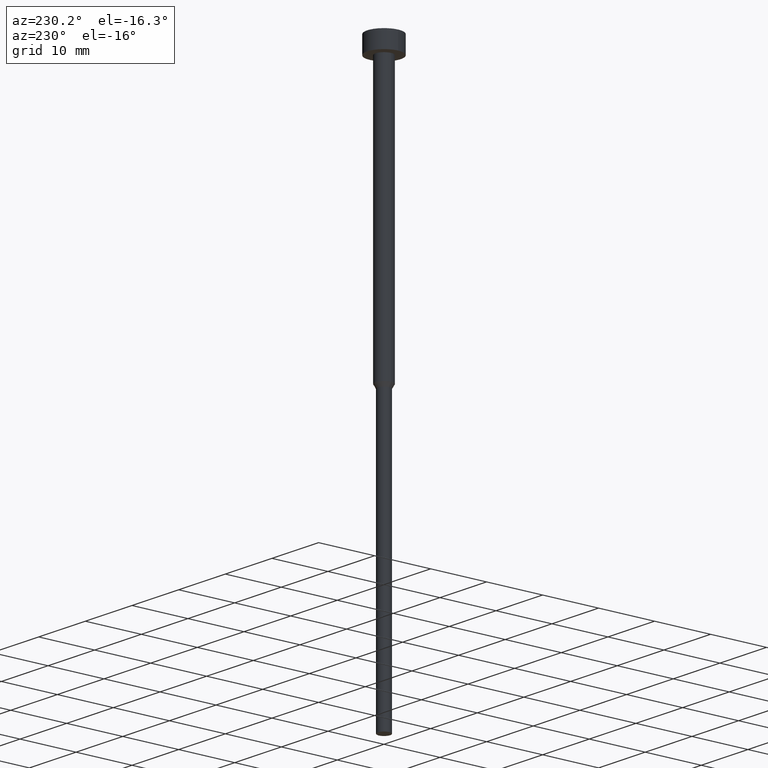
[diagram: clean part render]
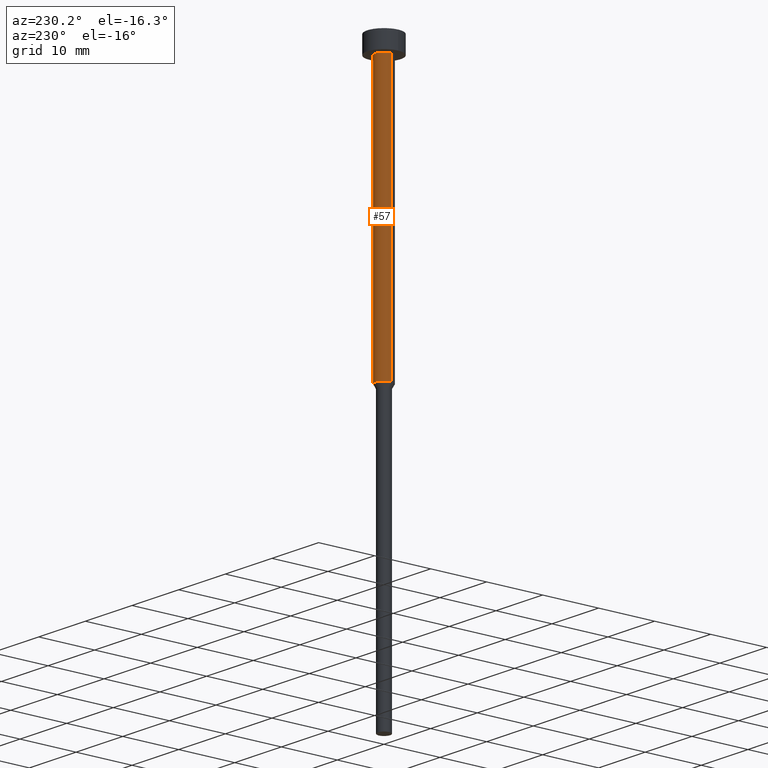
[diagram: same view with one face highlighted and labeled with its STEP entity id]
A machine part, auxiliary view. The second image highlights one B-rep face of the part: STEP entity #57.
In plain terms, the highlighted cylindrical surface (edge-blend (fillet) strip) has radius 1.5 mm, axis along (-0, -0, 1).
Its self-contained STEP definition (entity closure, byte-faithful):
#5 = CARTESIAN_POINT ( 'NONE',  ( 0.000000000000000000, 0.000000000000000000, -50.00000000000000000 ) ) ;
#9 = DIRECTION ( 'NONE',  ( -0.000000000000000000, -0.000000000000000000, 1.000000000000000000 ) ) ;
#12 = LINE ( 'NONE', #229, #194 ) ;
#19 = ORIENTED_EDGE ( 'NONE', *, *, #266, .T. ) ;
#25 = VERTEX_POINT ( 'NONE', #29 ) ;
#29 = CARTESIAN_POINT ( 'NONE',  ( 1.500000000000000000, 0.000000000000000000, -50.00000000000000000 ) ) ;
#30 = DIRECTION ( 'NONE',  ( -0.000000000000000000, -0.000000000000000000, 1.000000000000000000 ) ) ;
#35 = LINE ( 'NONE', #64, #282 ) ;
#40 = VERTEX_POINT ( 'NONE', #86 ) ;
#43 = CIRCLE ( 'NONE', #99, 1.500000000000000000 ) ;
#51 = CIRCLE ( 'NONE', #223, 1.500000000000000000 ) ;
#57 = ADVANCED_FACE ( 'NONE', ( #251 ), #112, .T. ) ;
#64 = CARTESIAN_POINT ( 'NONE',  ( 1.500000000000000000, 0.000000000000000000, 0.000000000000000000 ) ) ;
#86 = CARTESIAN_POINT ( 'NONE',  ( 1.500000000000000000, 0.000000000000000000, -3.000000000000000888 ) ) ;
#95 = DIRECTION ( 'NONE',  ( -0.000000000000000000, -0.000000000000000000, 1.000000000000000000 ) ) ;
#99 = AXIS2_PLACEMENT_3D ( 'NONE', #310, #95, #258 ) ;
#100 = ORIENTED_EDGE ( 'NONE', *, *, #302, .F. ) ;
#107 = VERTEX_POINT ( 'NONE', #327 ) ;
#112 = CYLINDRICAL_SURFACE ( 'NONE', #345, 1.500000000000000000 ) ;
#138 = ORIENTED_EDGE ( 'NONE', *, *, #260, .T. ) ;
#143 = DIRECTION ( 'NONE',  ( 1.000000000000000000, 0.000000000000000000, 0.000000000000000000 ) ) ;
#194 = VECTOR ( 'NONE', #202, 1000.000000000000000 ) ;
#198 = VERTEX_POINT ( 'NONE', #257 ) ;
#202 = DIRECTION ( 'NONE',  ( -0.000000000000000000, -0.000000000000000000, 1.000000000000000000 ) ) ;
#216 = ORIENTED_EDGE ( 'NONE', *, *, #318, .F. ) ;
#223 = AXIS2_PLACEMENT_3D ( 'NONE', #5, #9, #143 ) ;
#229 = CARTESIAN_POINT ( 'NONE',  ( -1.500000000000000000, 1.836970198721029934E-16, 0.000000000000000000 ) ) ;
#251 = FACE_OUTER_BOUND ( 'NONE', #333, .T. ) ;
#257 = CARTESIAN_POINT ( 'NONE',  ( -1.500000000000000000, 1.836970198721029934E-16, -50.00000000000000000 ) ) ;
#258 = DIRECTION ( 'NONE',  ( 1.000000000000000000, 0.000000000000000000, 0.000000000000000000 ) ) ;
#260 = EDGE_CURVE ( 'NONE', #25, #198, #51, .T. ) ;
#266 = EDGE_CURVE ( 'NONE', #198, #107, #12, .T. ) ;
#279 = CARTESIAN_POINT ( 'NONE',  ( 0.000000000000000000, 0.000000000000000000, 0.000000000000000000 ) ) ;
#282 = VECTOR ( 'NONE', #339, 1000.000000000000000 ) ;
#302 = EDGE_CURVE ( 'NONE', #40, #107, #43, .T. ) ;
#305 = DIRECTION ( 'NONE',  ( 1.000000000000000000, 0.000000000000000000, 0.000000000000000000 ) ) ;
#310 = CARTESIAN_POINT ( 'NONE',  ( 0.000000000000000000, 0.000000000000000000, -3.000000000000000888 ) ) ;
#318 = EDGE_CURVE ( 'NONE', #25, #40, #35, .T. ) ;
#327 = CARTESIAN_POINT ( 'NONE',  ( -1.500000000000000000, 1.836970198721029934E-16, -3.000000000000000888 ) ) ;
#333 = EDGE_LOOP ( 'NONE', ( #138, #19, #100, #216 ) ) ;
#339 = DIRECTION ( 'NONE',  ( -0.000000000000000000, -0.000000000000000000, 1.000000000000000000 ) ) ;
#345 = AXIS2_PLACEMENT_3D ( 'NONE', #279, #30, #305 ) ;